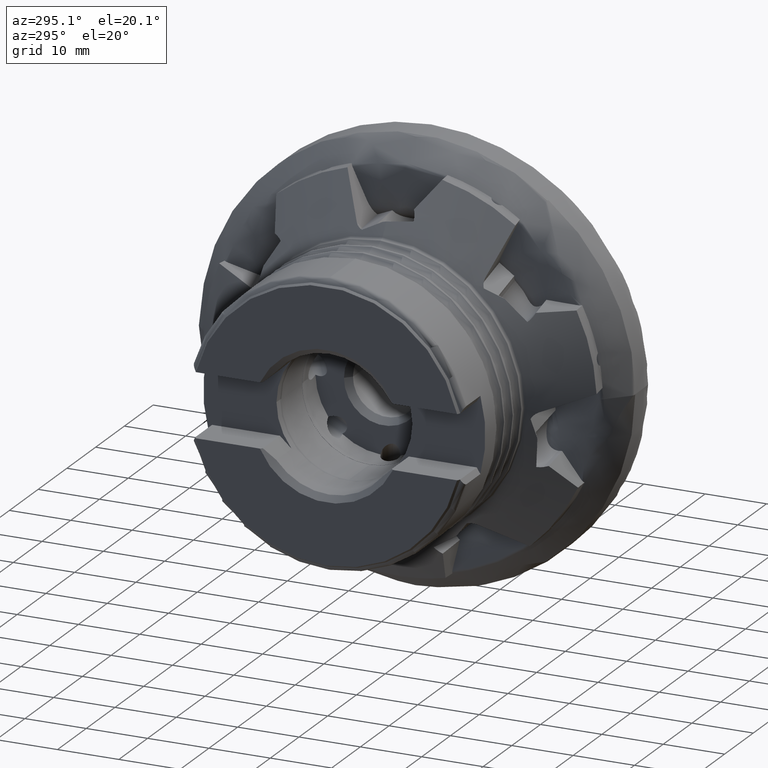
[diagram: clean part render]
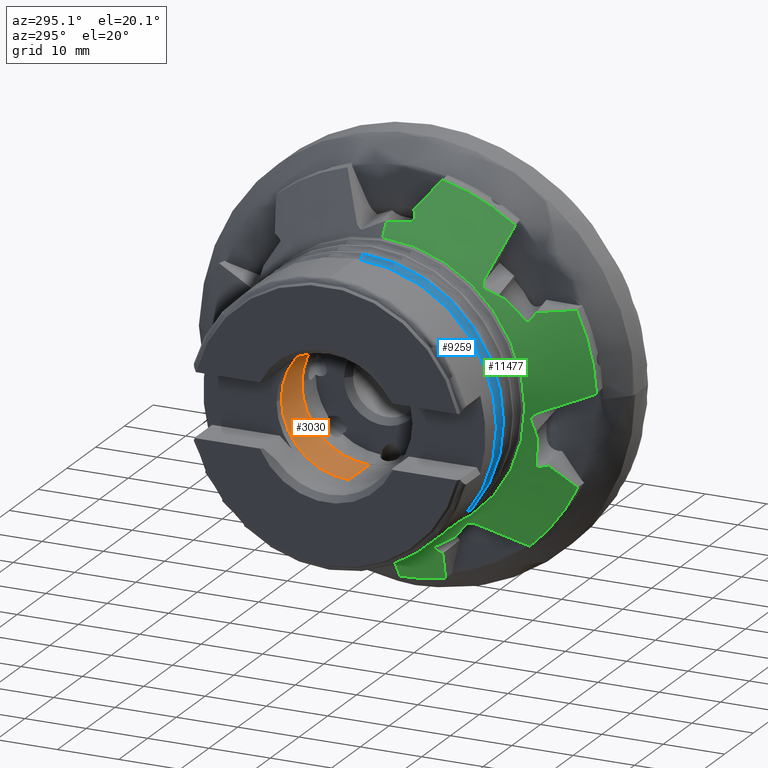
[diagram: same view with three faces highlighted in distinct colors, each labeled with its STEP entity id]
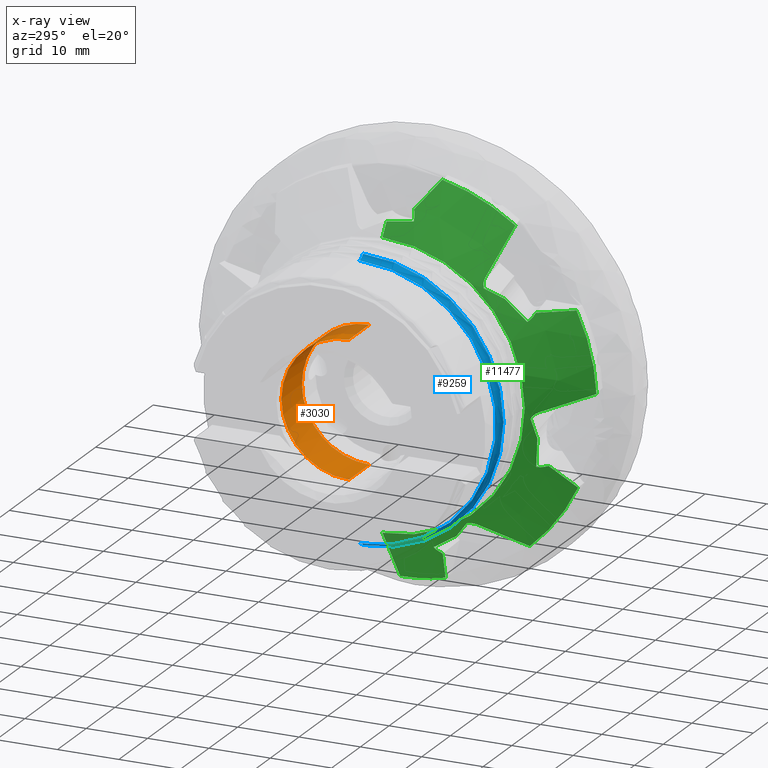
[diagram: x-ray of the same camera — body ghosted, the three highlighted faces saturated]
A machine part, auxiliary view with three faces highlighted in distinct colors.
The next image is the same camera in x-ray (body ghosted, the three faces saturated) — at least one of them is partly hidden behind the body in this view.
Their STEP definitions:

[orange] entity #3030 — the highlighted cylindrical surface (partial cylindrical patch) has radius 11 mm, axis along (-1, -0, -0).
#471 = EDGE_CURVE ( 'NONE', #7757, #2962, #6943, .T. ) ;
#1404 = VECTOR ( 'NONE', #5375, 1000.000000000000000 ) ;
#1492 = ORIENTED_EDGE ( 'NONE', *, *, #2391, .F. ) ;
#1709 = ORIENTED_EDGE ( 'NONE', *, *, #8023, .F. ) ;
#2391 = EDGE_CURVE ( 'Kante30', #5296, #5374, #6263, .T. ) ;
#2676 = DIRECTION ( 'NONE',  ( -1.000000000000000000, -0.0000000000000000000, -0.0000000000000000000 ) ) ;
#2962 = VERTEX_POINT ( 'NONE', #6156 ) ;
#3030 = ADVANCED_FACE ( 'NONE', ( #11248 ), #3273, .F. ) ;
#3084 = CARTESIAN_POINT ( 'NONE',  ( -24.15000000000000600, 0.0000000000000000000, 0.0000000000000000000 ) ) ;
#3093 = CARTESIAN_POINT ( 'NONE',  ( -31.29999999999999400, -5.174763463703276600E-015, 0.0000000000000000000 ) ) ;
#3217 = EDGE_CURVE ( 'NONE', #5296, #2962, #4684, .T. ) ;
#3273 = CYLINDRICAL_SURFACE ( 'NONE', #8049, 11.00000000000000000 ) ;
#3470 = DIRECTION ( 'NONE',  ( 1.000000000000000000, 1.653279061886031000E-016, -0.0000000000000000000 ) ) ;
#3501 = ORIENTED_EDGE ( 'NONE', *, *, #3217, .T. ) ;
#3674 = DIRECTION ( 'NONE',  ( 0.0000000000000000000, 0.0000000000000000000, 1.000000000000000000 ) ) ;
#4029 = CARTESIAN_POINT ( 'NONE',  ( -31.29999999999999400, 1.347111479062088600E-015, -11.00000000000000000 ) ) ;
#4038 = LINE ( 'NONE', #11356, #1404 ) ;
#4088 = DIRECTION ( 'NONE',  ( 0.0000000000000000000, 0.0000000000000000000, 1.000000000000000000 ) ) ;
#4089 = EDGE_CURVE ( 'NONE', #5374, #4449, #4038, .T. ) ;
#4098 = DIRECTION ( 'NONE',  ( 0.0000000000000000000, -1.000000000000000000, 0.0000000000000000000 ) ) ;
#4371 = VECTOR ( 'NONE', #6110, 1000.000000000000000 ) ;
#4449 = VERTEX_POINT ( 'NONE', #4029 ) ;
#4684 = LINE ( 'NONE', #12099, #4371 ) ;
#5296 = VERTEX_POINT ( 'NONE', #9079 ) ;
#5374 = VERTEX_POINT ( 'NONE', #6231 ) ;
#5375 = DIRECTION ( 'NONE',  ( -1.000000000000000000, -0.0000000000000000000, -0.0000000000000000000 ) ) ;
#6110 = DIRECTION ( 'NONE',  ( -1.000000000000000000, -0.0000000000000000000, -0.0000000000000000000 ) ) ;
#6156 = CARTESIAN_POINT ( 'NONE',  ( -31.29999999999999400, 0.0000000000000000000, 11.00000000000000000 ) ) ;
#6231 = CARTESIAN_POINT ( 'NONE',  ( -24.15000000000000600, 1.347111479062088400E-015, -11.00000000000000000 ) ) ;
#6263 = CIRCLE ( 'NONE', #8136, 11.00000000000000000 ) ;
#6943 = CIRCLE ( 'NONE', #7687, 11.00000000000000000 ) ;
#7687 = AXIS2_PLACEMENT_3D ( 'NONE', #9457, #3470, #10465 ) ;
#7757 = VERTEX_POINT ( 'NONE', #10553 ) ;
#7814 = AXIS2_PLACEMENT_3D ( 'NONE', #3093, #10084, #4098 ) ;
#8023 = EDGE_CURVE ( 'NONE', #4449, #7757, #10609, .T. ) ;
#8049 = AXIS2_PLACEMENT_3D ( 'NONE', #9661, #2676, #3674 ) ;
#8136 = AXIS2_PLACEMENT_3D ( 'NONE', #3084, #10071, #4088 ) ;
#9079 = CARTESIAN_POINT ( 'NONE',  ( -24.15000000000000600, 0.0000000000000000000, 11.00000000000000000 ) ) ;
#9457 = CARTESIAN_POINT ( 'NONE',  ( -31.29999999999999400, -5.174763463703276600E-015, 0.0000000000000000000 ) ) ;
#9528 = ORIENTED_EDGE ( 'NONE', *, *, #4089, .F. ) ;
#9661 = CARTESIAN_POINT ( 'NONE',  ( -24.15000000000000600, 0.0000000000000000000, 0.0000000000000000000 ) ) ;
#10071 = DIRECTION ( 'NONE',  ( -1.000000000000000000, 0.0000000000000000000, 0.0000000000000000000 ) ) ;
#10084 = DIRECTION ( 'NONE',  ( 1.000000000000000000, 1.653279061886031000E-016, -0.0000000000000000000 ) ) ;
#10465 = DIRECTION ( 'NONE',  ( 0.0000000000000000000, -1.000000000000000000, -8.881784197001252300E-016 ) ) ;
#10553 = CARTESIAN_POINT ( 'NONE',  ( -31.29999999999999400, 10.99999999999999500, 1.351703904558891200E-015 ) ) ;
#10609 = CIRCLE ( 'NONE', #7814, 11.00000000000000000 ) ;
#11248 = FACE_OUTER_BOUND ( 'NONE', #11392, .T. ) ;
#11356 = CARTESIAN_POINT ( 'NONE',  ( -24.15000000000000600, 1.347111479062088400E-015, -11.00000000000000000 ) ) ;
#11392 = EDGE_LOOP ( 'NONE', ( #9528, #1492, #3501, #12253, #1709 ) ) ;
#12099 = CARTESIAN_POINT ( 'NONE',  ( -24.15000000000000600, 0.0000000000000000000, 11.00000000000000000 ) ) ;
#12253 = ORIENTED_EDGE ( 'NONE', *, *, #471, .F. ) ;

[blue] entity #9259 — the highlighted toroidal blend (fillet) surface has major radius 23.75 mm and minor (blend) radius 1.5 mm.
#534 = DIRECTION ( 'NONE',  ( 0.0000000000000000000, 1.224646799147354900E-016, 1.000000000000000000 ) ) ;
#541 = CARTESIAN_POINT ( 'NONE',  ( -27.64999999999999900, 0.0000000000000000000, -23.74999999999998600 ) ) ;
#786 = AXIS2_PLACEMENT_3D ( 'NONE', #12506, #6509, #534 ) ;
#805 = CIRCLE ( 'NONE', #933, 22.24999999999998900 ) ;
#933 = AXIS2_PLACEMENT_3D ( 'NONE', #7496, #1509, #8483 ) ;
#1067 = VERTEX_POINT ( 'NONE', #5524 ) ;
#1138 = AXIS2_PLACEMENT_3D ( 'NONE', #4663, #2655, #11652 ) ;
#1509 = DIRECTION ( 'NONE',  ( 1.000000000000000000, -0.0000000000000000000, -0.0000000000000000000 ) ) ;
#1556 = DIRECTION ( 'NONE',  ( 0.0000000000000000000, 0.0000000000000000000, -1.000000000000000000 ) ) ;
#1667 = EDGE_CURVE ( 'NONE', #1067, #5222, #8314, .T. ) ;
#1937 = AXIS2_PLACEMENT_3D ( 'NONE', #541, #7538, #1556 ) ;
#2655 = DIRECTION ( 'NONE',  ( 1.000000000000000000, -0.0000000000000000000, -0.0000000000000000000 ) ) ;
#2727 = EDGE_CURVE ( 'NONE', #7429, #5222, #805, .T. ) ;
#2835 = CIRCLE ( 'NONE', #4268, 22.91176470588234800 ) ;
#2896 = EDGE_CURVE ( 'NONE', #6641, #1067, #2835, .T. ) ;
#3859 = CARTESIAN_POINT ( 'NONE',  ( -26.40607010177602000, 0.0000000000000000000, 0.0000000000000000000 ) ) ;
#4180 = EDGE_CURVE ( 'NONE', #6641, #7429, #9347, .T. ) ;
#4251 = CARTESIAN_POINT ( 'NONE',  ( -26.40607010177602000, 2.811284784513261500E-015, 22.91176470588234800 ) ) ;
#4268 = AXIS2_PLACEMENT_3D ( 'NONE', #3859, #10842, #4868 ) ;
#4364 = ORIENTED_EDGE ( 'NONE', *, *, #4180, .T. ) ;
#4434 = ORIENTED_EDGE ( 'NONE', *, *, #2727, .T. ) ;
#4648 = TOROIDAL_SURFACE ( 'NONE', #1138, 23.74999999999998600, 1.499999999999998700 ) ;
#4663 = CARTESIAN_POINT ( 'NONE',  ( -27.64999999999999900, 0.0000000000000000000, 0.0000000000000000000 ) ) ;
#4868 = DIRECTION ( 'NONE',  ( 0.0000000000000000000, 0.0000000000000000000, -1.000000000000000000 ) ) ;
#5030 = CARTESIAN_POINT ( 'NONE',  ( -27.64999999999999900, 0.0000000000000000000, -22.24999999999998900 ) ) ;
#5222 = VERTEX_POINT ( 'NONE', #5030 ) ;
#5392 = ORIENTED_EDGE ( 'NONE', *, *, #1667, .F. ) ;
#5524 = CARTESIAN_POINT ( 'NONE',  ( -26.40607010177602000, 0.0000000000000000000, -22.91176470588234800 ) ) ;
#6463 = ORIENTED_EDGE ( 'NONE', *, *, #2896, .F. ) ;
#6509 = DIRECTION ( 'NONE',  ( 0.0000000000000000000, 1.000000000000000000, -1.224646799147353200E-016 ) ) ;
#6641 = VERTEX_POINT ( 'NONE', #4251 ) ;
#7429 = VERTEX_POINT ( 'NONE', #10888 ) ;
#7496 = CARTESIAN_POINT ( 'NONE',  ( -27.64999999999999900, 0.0000000000000000000, 0.0000000000000000000 ) ) ;
#7538 = DIRECTION ( 'NONE',  ( -0.0000000000000000000, -1.000000000000000000, -0.0000000000000000000 ) ) ;
#8280 = EDGE_LOOP ( 'NONE', ( #4364, #4434, #5392, #6463 ) ) ;
#8314 = CIRCLE ( 'NONE', #1937, 1.499999999999997800 ) ;
#8483 = DIRECTION ( 'NONE',  ( 0.0000000000000000000, 0.0000000000000000000, -1.000000000000000000 ) ) ;
#9259 = ADVANCED_FACE ( 'NONE', ( #9966 ), #4648, .F. ) ;
#9347 = CIRCLE ( 'NONE', #786, 1.499999999999997800 ) ;
#9966 = FACE_OUTER_BOUND ( 'NONE', #8280, .T. ) ;
#10842 = DIRECTION ( 'NONE',  ( 1.000000000000000000, -0.0000000000000000000, -0.0000000000000000000 ) ) ;
#10888 = CARTESIAN_POINT ( 'NONE',  ( -27.64999999999999900, 2.724839128102859400E-015, 22.24999999999998900 ) ) ;
#11652 = DIRECTION ( 'NONE',  ( 0.0000000000000000000, 0.0000000000000000000, -1.000000000000000000 ) ) ;
#12506 = CARTESIAN_POINT ( 'NONE',  ( -27.64999999999999900, 2.908536147974962100E-015, 23.74999999999998600 ) ) ;

[green] entity #11477 — the highlighted conical surface has half-angle 55 deg.
#29 = CARTESIAN_POINT ( 'NONE',  ( -17.43809087074675900, -24.45093324673069900, -9.834086453557802100 ) ) ;
#35 = CARTESIAN_POINT ( 'NONE',  ( -18.60057088926593500, -12.12019326975290000, -21.53852603214288300 ) ) ;
#92 = CARTESIAN_POINT ( 'NONE',  ( -19.11095217035837400, -23.89941994483958600, -1.776064760076673900 ) ) ;
#114 = DIRECTION ( 'NONE',  ( 1.000000000000000000, -0.0000000000000000000, -0.0000000000000000000 ) ) ;
#116 = CARTESIAN_POINT ( 'NONE',  ( -17.64705153852185000, -24.15245123574246100, -9.776178858443241600 ) ) ;
#158 = VERTEX_POINT ( 'NONE', #12651 ) ;
#283 = CARTESIAN_POINT ( 'NONE',  ( -18.57379629821674500, -14.71023755070255500, -19.88238874349244200 ) ) ;
#313 = EDGE_CURVE ( 'NONE', #10269, #158, #6164, .T. ) ;
#342 = AXIS2_PLACEMENT_3D ( 'NONE', #5958, #12953, #6979 ) ;
#439 = ORIENTED_EDGE ( 'NONE', *, *, #8117, .T. ) ;
#469 = CARTESIAN_POINT ( 'NONE',  ( -17.55901511930906600, -7.469684781005148500, -25.09355592319722900 ) ) ;
#527 = ORIENTED_EDGE ( 'NONE', *, *, #11889, .F. ) ;
#546 = CARTESIAN_POINT ( 'NONE',  ( -15.59855133698881100, -26.81083813391459700, -11.03779438467234000 ) ) ;
#792 = CARTESIAN_POINT ( 'NONE',  ( -18.42690702134019200, -14.89696469211235900, -20.00489407739873500 ) ) ;
#848 = CARTESIAN_POINT ( 'NONE',  ( -19.11095217035837700, -16.28962795027663900, 17.57796066025147400 ) ) ;
#850 = CARTESIAN_POINT ( 'NONE',  ( -18.42690702134019200, -14.89696469211235900, -20.00489407739873500 ) ) ;
#861 = EDGE_CURVE ( 'NONE', #5789, #7262, #4351, .T. ) ;
#974 = CARTESIAN_POINT ( 'NONE',  ( -17.64705153852185000, -22.70213144514506700, 12.78779893549105200 ) ) ;
#996 = CARTESIAN_POINT ( 'NONE',  ( -13.44999999999999900, -32.01446459690097200, 1.508826223848850600 ) ) ;
#1020 = ORIENTED_EDGE ( 'NONE', *, *, #10687, .T. ) ;
#1028 = VERTEX_POINT ( 'NONE', #11507 ) ;
#1083 = ORIENTED_EDGE ( 'NONE', *, *, #313, .F. ) ;
#1135 = CARTESIAN_POINT ( 'NONE',  ( -17.23514645755528500, -24.75449069073332000, -9.855629565204262500 ) ) ;
#1154 = CARTESIAN_POINT ( 'NONE',  ( -17.55844613276056500, -4.157739467944542100, 25.85030943595478800 ) ) ;
#1186 = VERTEX_POINT ( 'NONE', #6743 ) ;
#1201 = CONICAL_SURFACE ( 'NONE', #2296, 32.04999999999999700, 0.9599310885968842500 ) ;
#1211 = LINE ( 'NONE', #2879, #6192 ) ;
#1249 = B_SPLINE_CURVE_WITH_KNOTS ( 'NONE', 3,
 ( #12892, #5886, #7921, #1939 ),
 .UNSPECIFIED., .F., .F.,
 ( 4, 4 ),
 ( 0.0006120213741874187100, 0.006659533458176909200 ),
 .UNSPECIFIED. ) ;
#1301 = AXIS2_PLACEMENT_3D ( 'NONE', #6091, #114, #7113 ) ;
#1360 = ORIENTED_EDGE ( 'NONE', *, *, #7947, .F. ) ;
#1473 = CARTESIAN_POINT ( 'NONE',  ( -13.45000000000000100, -28.75679240683298200, 14.15095016139595600 ) ) ;
#1487 = CARTESIAN_POINT ( 'NONE',  ( -17.29800340719880900, -7.672981463779817300, -25.42178538150161100 ) ) ;
#1488 = EDGE_CURVE ( 'NONE', #2940, #12747, #11738, .T. ) ;
#1506 = FACE_OUTER_BOUND ( 'NONE', #8432, .T. ) ;
#1542 = ORIENTED_EDGE ( 'NONE', *, *, #5389, .F. ) ;
#1547 = B_SPLINE_CURVE_WITH_KNOTS ( 'NONE', 3,
 ( #7295, #8292, #4307, #11283, #5304, #12297 ),
 .UNSPECIFIED., .F., .F.,
 ( 4, 2, 4 ),
 ( 0.0000000000000000000, 0.0007989045343449614200, 0.001597809068689922800 ),
 .UNSPECIFIED. ) ;
#1569 = ORIENTED_EDGE ( 'NONE', *, *, #8212, .F. ) ;
#1618 = CARTESIAN_POINT ( 'NONE',  ( -14.53025469454369500, -7.740647528220325300, -29.51763465468875900 ) ) ;
#1627 = CARTESIAN_POINT ( 'NONE',  ( -13.44999999999999900, 0.0000000000000000000, 0.0000000000000000000 ) ) ;
#1632 = VERTEX_POINT ( 'NONE', #1473 ) ;
#1761 = CARTESIAN_POINT ( 'NONE',  ( -18.28278489098340400, -24.64094012623792200, -5.024876947937282300 ) ) ;
#1815 = ORIENTED_EDGE ( 'NONE', *, *, #1488, .F. ) ;
#1818 = CARTESIAN_POINT ( 'NONE',  ( -15.59855133698887600, -4.795081092830455000, 28.59477476103716500 ) ) ;
#1872 = CARTESIAN_POINT ( 'NONE',  ( -18.28278489098341500, -19.29198187034617000, 16.13210321566867800 ) ) ;
#1939 = CARTESIAN_POINT ( 'NONE',  ( -13.45000000000000100, -28.75679240683298200, 14.15095016139595600 ) ) ;
#1969 = ORIENTED_EDGE ( 'NONE', *, *, #6076, .F. ) ;
#2037 = VECTOR ( 'NONE', #4952, 1000.000000000000200 ) ;
#2061 = CARTESIAN_POINT ( 'NONE',  ( -17.85128304905927300, -21.67831683061075400, 14.01107043516820400 ) ) ;
#2114 = CARTESIAN_POINT ( 'NONE',  ( -18.60028536810664700, -24.39653442677615300, -3.954065613178146900 ) ) ;
#2134 = B_SPLINE_CURVE_WITH_KNOTS ( 'NONE', 3,
 ( #12565, #5557, #1618, #8594 ),
 .UNSPECIFIED., .F., .F.,
 ( 4, 4 ),
 ( 0.0006120213741873433600, 0.006659533458176910900 ),
 .UNSPECIFIED. ) ;
#2141 = CARTESIAN_POINT ( 'NONE',  ( -17.03873128699543600, -25.06182455562639800, -9.841121961731012400 ) ) ;
#2184 = ORIENTED_EDGE ( 'NONE', *, *, #2354, .F. ) ;
#2202 = CARTESIAN_POINT ( 'NONE',  ( -17.29621574956108200, -4.116506850299580300, 26.23607800693196200 ) ) ;
#2283 = CARTESIAN_POINT ( 'NONE',  ( -18.94182346945020300, -14.01529264148360600, -19.73761511445873800 ) ) ;
#2296 = AXIS2_PLACEMENT_3D ( 'NONE', #1627, #2481, #8474 ) ;
#2330 = B_SPLINE_CURVE_WITH_KNOTS ( 'NONE', 3,
 ( #92, #6063, #2114, #9085 ),
 .UNSPECIFIED., .F., .F.,
 ( 4, 4 ),
 ( 0.01557678928807016200, 0.01900135324810320700 ),
 .UNSPECIFIED. ) ;
#2354 = EDGE_CURVE ( 'NONE', #8249, #7954, #8926, .T. ) ;
#2465 = CARTESIAN_POINT ( 'NONE',  ( -16.95776900465215700, -8.010972796000443100, -25.82669499410682000 ) ) ;
#2481 = DIRECTION ( 'NONE',  ( 1.000000000000000000, -0.0000000000000000000, -0.0000000000000000000 ) ) ;
#2539 = CARTESIAN_POINT ( 'NONE',  ( -14.53025469454363800, -27.90403085465348100, -12.35206224993938100 ) ) ;
#2568 = CARTESIAN_POINT ( 'NONE',  ( -17.64705153852185000, -7.415482625606437700, -24.97849457426366700 ) ) ;
#2589 = VERTEX_POINT ( 'NONE', #6350 ) ;
#2667 = DIRECTION ( 'NONE',  ( 1.000000000000000000, -0.0000000000000000000, -0.0000000000000000000 ) ) ;
#2748 = B_SPLINE_CURVE_WITH_KNOTS ( 'NONE', 3,
 ( #8952, #7950, #9943, #3960 ),
 .UNSPECIFIED., .F., .F.,
 ( 4, 4 ),
 ( 3.576832978361728800E-007, 0.008968670596897876400 ),
 .UNSPECIFIED. ) ;
#2808 = CARTESIAN_POINT ( 'NONE',  ( -17.46948252254242100, -22.89955436113109500, 12.95399371817918200 ) ) ;
#2831 =( BOUNDED_CURVE ( )  B_SPLINE_CURVE ( 3, ( #10611, #11622, #12634, #6655 ),
 .UNSPECIFIED., .F., .F. ) 
 B_SPLINE_CURVE_WITH_KNOTS ( ( 4, 4 ),
 ( 1.137889489275856900, 1.312520842058338100 ),
 .UNSPECIFIED. ) 
 CURVE ( )  GEOMETRIC_REPRESENTATION_ITEM ( )  RATIONAL_B_SPLINE_CURVE ( ( 1.000000000000000000, 0.9974602717472020900, 0.9974602717472020900, 1.000000000000000000 ) ) 
 REPRESENTATION_ITEM ( '' )  );
#2879 = CARTESIAN_POINT ( 'NONE',  ( -13.44999999999999900, 0.0000000000000000000, -32.04999999999999700 ) ) ;
#2880 = VERTEX_POINT ( 'NONE', #850 ) ;
#2940 = VERTEX_POINT ( 'NONE', #7273 ) ;
#2949 = CARTESIAN_POINT ( 'NONE',  ( -19.63758572392920600, 0.0000000000000000000, 0.0000000000000000000 ) ) ;
#2976 = ORIENTED_EDGE ( 'NONE', *, *, #8946, .F. ) ;
#3023 = EDGE_CURVE ( 'NONE', #5789, #5686, #2831, .T. ) ;
#3028 = ORIENTED_EDGE ( 'NONE', *, *, #10807, .T. ) ;
#3078 =( BOUNDED_CURVE ( )  B_SPLINE_CURVE ( 3, ( #11942, #5959, #12957, #6982 ),
 .UNSPECIFIED., .F., .T. ) 
 B_SPLINE_CURVE_WITH_KNOTS ( ( 4, 4 ),
 ( 1.137889489275856900, 1.337395664971000200 ),
 .UNSPECIFIED. ) 
 CURVE ( )  GEOMETRIC_REPRESENTATION_ITEM ( )  RATIONAL_B_SPLINE_CURVE ( ( 1.000000000000000000, 0.9966858566873636500, 0.9966858566873636500, 1.000000000000000000 ) ) 
 REPRESENTATION_ITEM ( '' )  );
#3085 = ORIENTED_EDGE ( 'NONE', *, *, #3934, .F. ) ;
#3133 = CARTESIAN_POINT ( 'NONE',  ( -19.11095217035837400, -23.89941994483958600, -1.776064760076673900 ) ) ;
#3160 = CARTESIAN_POINT ( 'NONE',  ( -13.44999999999999900, 0.0000000000000000000, 0.0000000000000000000 ) ) ;
#3186 = CARTESIAN_POINT ( 'NONE',  ( -16.96056239597540800, -3.989413209648814600, 26.74065120963088700 ) ) ;
#3270 = ORIENTED_EDGE ( 'NONE', *, *, #5551, .T. ) ;
#3293 = CARTESIAN_POINT ( 'NONE',  ( -19.11095217035837700, -13.51246126161667500, -19.79267719094845300 ) ) ;
#3439 = EDGE_CURVE ( 'NONE', #1186, #6692, #4406, .T. ) ;
#3467 = CARTESIAN_POINT ( 'NONE',  ( -16.64684298790193400, -8.436649152089405100, -26.15754425772354700 ) ) ;
#3543 = ORIENTED_EDGE ( 'NONE', *, *, #5414, .F. ) ;
#3599 = CARTESIAN_POINT ( 'NONE',  ( -18.28278489098340400, -24.64094012623792200, -5.024876947937282300 ) ) ;
#3630 = AXIS2_PLACEMENT_3D ( 'NONE', #8649, #2667, #9650 ) ;
#3673 = VERTEX_POINT ( 'NONE', #8589 ) ;
#3693 = AXIS2_PLACEMENT_3D ( 'NONE', #3160, #10153, #4166 ) ;
#3796 = CARTESIAN_POINT ( 'NONE',  ( -17.21096300573047700, -23.16243427333289900, 13.23866109176795900 ) ) ;
#3811 = EDGE_CURVE ( 'NONE', #12588, #3673, #11235, .T. ) ;
#3824 = EDGE_CURVE ( 'NONE', #2589, #4766, #12956, .T. ) ;
#3851 = B_SPLINE_CURVE_WITH_KNOTS ( 'NONE', 3,
 ( #11749, #12763, #2808, #9792, #3796, #10795, #4803, #11788 ),
 .UNSPECIFIED., .F., .F.,
 ( 4, 2, 2, 4 ),
 ( 0.001355116005000654100, 0.001817197486309399400, 0.002279278967618144500, 0.003203441930235627700 ),
 .UNSPECIFIED. ) ;
#3886 = DIRECTION ( 'NONE',  ( 0.5735764363510436100, 0.0000000000000000000, -0.8191520442889934600 ) ) ;
#3888 = VERTEX_POINT ( 'NONE', #12040 ) ;
#3902 = ORIENTED_EDGE ( 'NONE', *, *, #7271, .F. ) ;
#3934 = EDGE_CURVE ( 'NONE', #6692, #1028, #7344, .T. ) ;
#3951 = DIRECTION ( 'NONE',  ( 0.0000000000000000000, 0.0000000000000000000, -1.000000000000000000 ) ) ;
#3960 = CARTESIAN_POINT ( 'NONE',  ( -18.42690702134018100, -16.18844311989370900, 18.97497439892742200 ) ) ;
#4002 = CARTESIAN_POINT ( 'NONE',  ( -19.11095217035837700, -13.51246126161667500, -19.79267719094845300 ) ) ;
#4003 = CARTESIAN_POINT ( 'NONE',  ( -17.64705153852185000, -22.70213144514506700, 12.78779893549105200 ) ) ;
#4166 = DIRECTION ( 'NONE',  ( 0.0000000000000000000, 0.0000000000000000000, -1.000000000000000000 ) ) ;
#4189 = ORIENTED_EDGE ( 'NONE', *, *, #9601, .F. ) ;
#4197 = CARTESIAN_POINT ( 'NONE',  ( -16.64684298790163900, -3.748174873226003600, 27.22765791672014800 ) ) ;
#4307 = CARTESIAN_POINT ( 'NONE',  ( -18.71056379662784500, -16.08379331159488500, 18.53138688541037400 ) ) ;
#4351 = B_SPLINE_CURVE_WITH_KNOTS ( 'NONE', 3,
 ( #8184, #1154, #6150, #2202, #9165, #3186, #10177, #4197 ),
 .UNSPECIFIED., .F., .F.,
 ( 4, 2, 2, 4 ),
 ( 0.001355116005000642700, 0.001816995624793315700, 0.002278875244585988700, 0.003202634484171337300 ),
 .UNSPECIFIED. ) ;
#4361 = ORIENTED_EDGE ( 'NONE', *, *, #7924, .F. ) ;
#4368 = B_SPLINE_CURVE_WITH_KNOTS ( 'NONE', 3,
 ( #10463, #10502, #6775, #792 ),
 .UNSPECIFIED., .F., .F.,
 ( 4, 4 ),
 ( 3.576834477271380500E-007, 0.008968671198431464900 ),
 .UNSPECIFIED. ) ;
#4406 = B_SPLINE_CURVE_WITH_KNOTS ( 'NONE', 3,
 ( #7540, #546, #2539, #9534 ),
 .UNSPECIFIED., .F., .F.,
 ( 4, 4 ),
 ( 0.0006120213741876607000, 0.006659533458176910100 ),
 .UNSPECIFIED. ) ;
#4473 = CARTESIAN_POINT ( 'NONE',  ( -18.94182346945020600, -24.16988091735144600, -1.348604713763364100 ) ) ;
#4709 = CARTESIAN_POINT ( 'NONE',  ( -18.06389880563427400, -24.63387649992851900, -6.623997467093312600 ) ) ;
#4766 = VERTEX_POINT ( 'NONE', #7760 ) ;
#4803 = CARTESIAN_POINT ( 'NONE',  ( -16.79769678638086500, -23.52522432332747800, 13.79094483374898800 ) ) ;
#4952 = DIRECTION ( 'NONE',  ( 0.5735764363510436100, 1.003171929053526700E-016, 0.8191520442889934600 ) ) ;
#4980 = ORIENTED_EDGE ( 'NONE', *, *, #3824, .F. ) ;
#5016 = CARTESIAN_POINT ( 'NONE',  ( -18.87963116016583600, -12.81224372716402200, -20.67072220688802600 ) ) ;
#5053 = CARTESIAN_POINT ( 'NONE',  ( -18.28278489098341500, -19.29198187034617000, 16.13210321566867800 ) ) ;
#5152 = CARTESIAN_POINT ( 'NONE',  ( -17.85128304905927300, -24.47050543463986800, -8.213031055636319500 ) ) ;
#5157 = VERTEX_POINT ( 'NONE', #10507 ) ;
#5181 = CARTESIAN_POINT ( 'NONE',  ( -18.42690702134018100, -16.18844311989370900, 18.97497439892742200 ) ) ;
#5304 = CARTESIAN_POINT ( 'NONE',  ( -19.03724693391028600, -16.18959635046013900, 17.81417207705510500 ) ) ;
#5308 = B_SPLINE_CURVE_WITH_KNOTS ( 'NONE', 3,
 ( #7243, #283, #8287, #2283, #9266, #3293 ),
 .UNSPECIFIED., .F., .F.,
 ( 4, 2, 4 ),
 ( 4.906538933386797400E-018, 0.0007989045343449626100, 0.001597809068689920500 ),
 .UNSPECIFIED. ) ;
#5333 = CARTESIAN_POINT ( 'NONE',  ( -13.45000000000000100, -28.99322514284441600, -13.65999252621808300 ) ) ;
#5389 = EDGE_CURVE ( 'NONE', #10520, #6215, #7265, .T. ) ;
#5414 = EDGE_CURVE ( 'NONE', #1028, #2880, #4368, .T. ) ;
#5474 = CARTESIAN_POINT ( 'NONE',  ( -19.11095217035837400, -23.89941994483958600, -1.776064760076673900 ) ) ;
#5551 = EDGE_CURVE ( 'NONE', #10520, #5157, #3078, .T. ) ;
#5557 = CARTESIAN_POINT ( 'NONE',  ( -15.59855133698892300, -8.086589008835273900, -27.84350955830548500 ) ) ;
#5603 = EDGE_CURVE ( 'NONE', #1632, #8249, #6039, .T. ) ;
#5686 = VERTEX_POINT ( 'NONE', #9145 ) ;
#5687 = VERTEX_POINT ( 'NONE', #5181 ) ;
#5746 = EDGE_CURVE ( 'NONE', #2880, #3888, #5308, .T. ) ;
#5789 = VERTEX_POINT ( 'NONE', #6304 ) ;
#5814 = CARTESIAN_POINT ( 'NONE',  ( -14.53025469454367000, -5.833139253549879800, 29.95301097072752900 ) ) ;
#5868 = ORIENTED_EDGE ( 'NONE', *, *, #11501, .F. ) ;
#5886 = CARTESIAN_POINT ( 'NONE',  ( -15.59855133698889600, -25.34597930272650500, 14.07960509059207300 ) ) ;
#5956 = CARTESIAN_POINT ( 'NONE',  ( -13.44999999999999900, 3.924992991267266500E-015, 32.04999999999999700 ) ) ;
#5958 = CARTESIAN_POINT ( 'NONE',  ( -13.44999999999999900, 0.0000000000000000000, 0.0000000000000000000 ) ) ;
#5959 = CARTESIAN_POINT ( 'NONE',  ( -17.85128304905927300, -8.835904339042508900, -24.25255264624480500 ) ) ;
#5964 = CARTESIAN_POINT ( 'NONE',  ( -16.64684298790175600, -23.62438896220130500, 14.04572592188946500 ) ) ;
#6003 = CARTESIAN_POINT ( 'NONE',  ( -18.42690702134019200, -24.92856155733025100, -0.8259314550141194600 ) ) ;
#6026 = EDGE_CURVE ( 'NONE', #4766, #5687, #2748, .T. ) ;
#6039 = CIRCLE ( 'NONE', #1301, 32.04999999999999700 ) ;
#6063 = CARTESIAN_POINT ( 'NONE',  ( -18.87940794586639700, -24.14956583627303700, -2.872025519094368700 ) ) ;
#6068 = VERTEX_POINT ( 'NONE', #5964 ) ;
#6076 = EDGE_CURVE ( 'NONE', #3888, #5157, #11708, .T. ) ;
#6091 = CARTESIAN_POINT ( 'NONE',  ( -13.44999999999999900, 0.0000000000000000000, 0.0000000000000000000 ) ) ;
#6143 = VERTEX_POINT ( 'NONE', #3133 ) ;
#6150 = CARTESIAN_POINT ( 'NONE',  ( -17.46955968819247600, -4.149805452361523100, 25.98016276670616900 ) ) ;
#6164 = B_SPLINE_CURVE_WITH_KNOTS ( 'NONE', 3,
 ( #848, #6843, #7852, #1872 ),
 .UNSPECIFIED., .F., .F.,
 ( 4, 4 ),
 ( 0.01628239562661947000, 0.01970614495812350600 ),
 .UNSPECIFIED. ) ;
#6192 = VECTOR ( 'NONE', #3886, 1000.000000000000200 ) ;
#6215 = VERTEX_POINT ( 'NONE', #8208 ) ;
#6304 = CARTESIAN_POINT ( 'NONE',  ( -17.64705153852185000, -4.156643637266310700, 25.72230330744047700 ) ) ;
#6350 = CARTESIAN_POINT ( 'NONE',  ( -13.44999999999999900, -6.865908456813568400, 31.30593875070120900 ) ) ;
#6443 = CARTESIAN_POINT ( 'NONE',  ( -17.47161029730615000, -7.531986188389757900, -25.20525404288860100 ) ) ;
#6487 = CIRCLE ( 'NONE', #3630, 32.04999999999999700 ) ;
#6607 = CARTESIAN_POINT ( 'NONE',  ( -16.64684298790119900, -25.71095631292698500, -9.712924172718231800 ) ) ;
#6646 = CARTESIAN_POINT ( 'NONE',  ( -13.45000000000000300, -7.397167992282335900, -31.18468222852292000 ) ) ;
#6655 = CARTESIAN_POINT ( 'NONE',  ( -18.20129739390640100, 3.469446951953614200E-015, 25.26444409745352000 ) ) ;
#6692 = VERTEX_POINT ( 'NONE', #5333 ) ;
#6743 = CARTESIAN_POINT ( 'NONE',  ( -16.64684298790119900, -25.71095631292698500, -9.712924172718231800 ) ) ;
#6775 = CARTESIAN_POINT ( 'NONE',  ( -16.78411618248236100, -16.98529710001131600, -21.37497802451764500 ) ) ;
#6843 = CARTESIAN_POINT ( 'NONE',  ( -18.87949281484482000, -17.30207675388650300, 17.09039101359090700 ) ) ;
#6979 = DIRECTION ( 'NONE',  ( 0.0000000000000000000, 0.0000000000000000000, -1.000000000000000000 ) ) ;
#6982 = CARTESIAN_POINT ( 'NONE',  ( -18.28278489098341100, -11.43476788349572700, -22.39802228093649500 ) ) ;
#7035 = CARTESIAN_POINT ( 'NONE',  ( -18.28278489098341100, -11.43476788349572700, -22.39802228093649500 ) ) ;
#7113 = DIRECTION ( 'NONE',  ( 0.0000000000000000000, 0.0000000000000000000, -1.000000000000000000 ) ) ;
#7243 = CARTESIAN_POINT ( 'NONE',  ( -18.42690702134019200, -14.89696469211235900, -20.00489407739873500 ) ) ;
#7262 = VERTEX_POINT ( 'NONE', #10565 ) ;
#7265 = B_SPLINE_CURVE_WITH_KNOTS ( 'NONE', 3,
 ( #7466, #469, #6443, #1487, #8464, #2465, #9454, #3467 ),
 .UNSPECIFIED., .F., .F.,
 ( 4, 2, 2, 4 ),
 ( 0.0007506923261620523000, 0.001214745216342493100, 0.001678798106522934100, 0.002606903886883828400 ),
 .UNSPECIFIED. ) ;
#7271 = EDGE_CURVE ( 'NONE', #12747, #1186, #9790, .T. ) ;
#7273 = CARTESIAN_POINT ( 'NONE',  ( -17.64705153852185000, -24.15245123574246100, -9.776178858443241600 ) ) ;
#7295 = CARTESIAN_POINT ( 'NONE',  ( -18.42690702134018100, -16.18844311989370900, 18.97497439892742200 ) ) ;
#7344 = CIRCLE ( 'NONE', #3693, 32.04999999999999700 ) ;
#7346 = CARTESIAN_POINT ( 'NONE',  ( -17.03873128699543600, -25.06182455562639800, -9.841121961731012400 ) ) ;
#7466 = CARTESIAN_POINT ( 'NONE',  ( -17.64705153852185000, -7.415482625606437700, -24.97849457426366700 ) ) ;
#7540 = CARTESIAN_POINT ( 'NONE',  ( -16.64684298790119900, -25.71095631292698500, -9.712924172718231800 ) ) ;
#7607 = CARTESIAN_POINT ( 'NONE',  ( -13.44999999999999900, 0.0000000000000000000, -32.04999999999999700 ) ) ;
#7668 = LINE ( 'NONE', #5956, #2037 ) ;
#7673 = ORIENTED_EDGE ( 'NONE', *, *, #3023, .T. ) ;
#7709 =( BOUNDED_CURVE ( )  B_SPLINE_CURVE ( 3, ( #4003, #2061, #11040, #5053 ),
 .UNSPECIFIED., .F., .F. ) 
 B_SPLINE_CURVE_WITH_KNOTS ( ( 4, 4 ),
 ( 1.137889489275856900, 1.337395664971000200 ),
 .UNSPECIFIED. ) 
 CURVE ( )  GEOMETRIC_REPRESENTATION_ITEM ( )  RATIONAL_B_SPLINE_CURVE ( ( 1.000000000000000000, 0.9966858566873636500, 0.9966858566873636500, 1.000000000000000000 ) ) 
 REPRESENTATION_ITEM ( '' )  );
#7760 = CARTESIAN_POINT ( 'NONE',  ( -13.45000000000000100, -18.78104434475679700, 25.97065407956215900 ) ) ;
#7852 = CARTESIAN_POINT ( 'NONE',  ( -18.60039380161783400, -18.30206543274464400, 16.60882184675794400 ) ) ;
#7921 = CARTESIAN_POINT ( 'NONE',  ( -14.53025469454368100, -27.05510980903528700, 14.11486496516596900 ) ) ;
#7924 = EDGE_CURVE ( 'NONE', #7262, #2589, #12518, .T. ) ;
#7946 = CARTESIAN_POINT ( 'NONE',  ( -15.12154981037088500, -29.66126413195079800, 0.7307611368152420200 ) ) ;
#7947 = EDGE_CURVE ( 'NONE', #6068, #1632, #1249, .T. ) ;
#7950 = CARTESIAN_POINT ( 'NONE',  ( -15.12155523223614000, -17.92216084770425500, 23.64572468340482200 ) ) ;
#7954 = VERTEX_POINT ( 'NONE', #9908 ) ;
#8117 = EDGE_CURVE ( 'NONE', #2940, #11177, #8484, .T. ) ;
#8125 = CARTESIAN_POINT ( 'NONE',  ( -17.13587723813113700, -24.90754605364831800, -9.854432626252027200 ) ) ;
#8184 = CARTESIAN_POINT ( 'NONE',  ( -17.64705153852185000, -4.156643637266310700, 25.72230330744047700 ) ) ;
#8194 = B_SPLINE_CURVE_WITH_KNOTS ( 'NONE', 3,
 ( #9444, #9365, #10448, #4473, #11441, #5474 ),
 .UNSPECIFIED., .F., .F.,
 ( 4, 2, 4 ),
 ( 0.0000000000000000000, 0.0007989045343449589300, 0.001597809068689917900 ),
 .UNSPECIFIED. ) ;
#8208 = CARTESIAN_POINT ( 'NONE',  ( -16.64684298790193400, -8.436649152089405100, -26.15754425772354700 ) ) ;
#8212 = EDGE_CURVE ( 'NONE', #12588, #5686, #7668, .T. ) ;
#8249 = VERTEX_POINT ( 'NONE', #9024 ) ;
#8287 = CARTESIAN_POINT ( 'NONE',  ( -18.71056379662784200, -14.48778561677025500, -19.80416055048455000 ) ) ;
#8292 = CARTESIAN_POINT ( 'NONE',  ( -18.57379629821673800, -16.11055994837881800, 18.76566889548960800 ) ) ;
#8432 = EDGE_LOOP ( 'NONE', ( #1569, #12260, #1020, #5868, #527, #1542, #3270, #1969, #10131, #3543, #3085, #8858, #3902, #1815, #439, #2976, #4189, #2184, #11035, #1360, #12740, #3028, #1083, #8982, #11394, #4980, #4361, #12898, #7673 ) ) ;
#8464 = CARTESIAN_POINT ( 'NONE',  ( -17.21122111753840000, -7.752302862654672400, -25.52729337882607300 ) ) ;
#8474 = DIRECTION ( 'NONE',  ( 0.0000000000000000000, 0.0000000000000000000, -1.000000000000000000 ) ) ;
#8484 =( BOUNDED_CURVE ( )  B_SPLINE_CURVE ( 3, ( #12184, #5152, #4709, #1761 ),
 .UNSPECIFIED., .F., .F. ) 
 B_SPLINE_CURVE_WITH_KNOTS ( ( 4, 4 ),
 ( 1.137889489275856900, 1.337395664970998400 ),
 .UNSPECIFIED. ) 
 CURVE ( )  GEOMETRIC_REPRESENTATION_ITEM ( )  RATIONAL_B_SPLINE_CURVE ( ( 1.000000000000000000, 0.9966858566873636500, 0.9966858566873636500, 1.000000000000000000 ) ) 
 REPRESENTATION_ITEM ( '' )  );
#8589 = CARTESIAN_POINT ( 'NONE',  ( -19.63758572392920600, 0.0000000000000000000, -23.21321178182447700 ) ) ;
#8594 = CARTESIAN_POINT ( 'NONE',  ( -13.45000000000000300, -7.397167992282335900, -31.18468222852292000 ) ) ;
#8649 = CARTESIAN_POINT ( 'NONE',  ( -13.44999999999999900, 0.0000000000000000000, 0.0000000000000000000 ) ) ;
#8858 = ORIENTED_EDGE ( 'NONE', *, *, #3439, .F. ) ;
#8926 = B_SPLINE_CURVE_WITH_KNOTS ( 'NONE', 3,
 ( #996, #7946, #11996, #6003 ),
 .UNSPECIFIED., .F., .F.,
 ( 4, 4 ),
 ( 3.576846153164336900E-007, 0.008968674541191740100 ),
 .UNSPECIFIED. ) ;
#8946 = EDGE_CURVE ( 'NONE', #6143, #11177, #2330, .T. ) ;
#8952 = CARTESIAN_POINT ( 'NONE',  ( -13.45000000000000100, -18.78104434475679700, 25.97065407956215900 ) ) ;
#8982 = ORIENTED_EDGE ( 'NONE', *, *, #12306, .F. ) ;
#9024 = CARTESIAN_POINT ( 'NONE',  ( -13.44999999999999900, -32.01446459690097200, 1.508826223848850600 ) ) ;
#9085 = CARTESIAN_POINT ( 'NONE',  ( -18.28278489098340400, -24.64094012623792200, -5.024876947937282300 ) ) ;
#9145 = CARTESIAN_POINT ( 'NONE',  ( -18.20129739390640100, 3.469446951953614200E-015, 25.26444409745352000 ) ) ;
#9165 = CARTESIAN_POINT ( 'NONE',  ( -17.21114823101716200, -4.091198548949027900, 26.36301357849319500 ) ) ;
#9266 = CARTESIAN_POINT ( 'NONE',  ( -19.03724693391027500, -13.76500949005087000, -19.74771557726543800 ) ) ;
#9365 = CARTESIAN_POINT ( 'NONE',  ( -18.57379629821674500, -24.71636056211279700, -0.8955397864357006500 ) ) ;
#9444 = CARTESIAN_POINT ( 'NONE',  ( -18.42690702134019200, -24.92856155733025100, -0.8259314550141194600 ) ) ;
#9454 = CARTESIAN_POINT ( 'NONE',  ( -16.79789638643804400, -8.210022704491542800, -26.00396882505513600 ) ) ;
#9534 = CARTESIAN_POINT ( 'NONE',  ( -13.45000000000000100, -28.99322514284441600, -13.65999252621808300 ) ) ;
#9601 = EDGE_CURVE ( 'NONE', #7954, #6143, #8194, .T. ) ;
#9650 = DIRECTION ( 'NONE',  ( 0.0000000000000000000, 0.0000000000000000000, -1.000000000000000000 ) ) ;
#9790 = B_SPLINE_CURVE_WITH_KNOTS ( 'NONE', 3,
 ( #11580, #12549, #12594, #6607 ),
 .UNSPECIFIED., .F., .F.,
 ( 4, 4 ),
 ( 0.002443800426840281300, 0.003202545619061705800 ),
 .UNSPECIFIED. ) ;
#9792 = CARTESIAN_POINT ( 'NONE',  ( -17.29606564049680600, -23.07894309798383900, 13.13968003907335800 ) ) ;
#9797 = CARTESIAN_POINT ( 'NONE',  ( -16.64684298790163900, -3.748174873226003600, 27.22765791672014800 ) ) ;
#9908 = CARTESIAN_POINT ( 'NONE',  ( -18.42690702134019200, -24.92856155733025100, -0.8259314550141194600 ) ) ;
#9929 = DIRECTION ( 'NONE',  ( 1.000000000000000000, -0.0000000000000000000, -0.0000000000000000000 ) ) ;
#9943 = CARTESIAN_POINT ( 'NONE',  ( -16.78411692587059900, -17.05947812999828300, 21.31581925354450700 ) ) ;
#10131 = ORIENTED_EDGE ( 'NONE', *, *, #5746, .F. ) ;
#10153 = DIRECTION ( 'NONE',  ( 1.000000000000000000, -0.0000000000000000000, -0.0000000000000000000 ) ) ;
#10177 = CARTESIAN_POINT ( 'NONE',  ( -16.79830670675723100, -3.886098002598202200, 26.99031874272312900 ) ) ;
#10269 = VERTEX_POINT ( 'NONE', #12022 ) ;
#10448 = CARTESIAN_POINT ( 'NONE',  ( -18.71056379662784200, -24.51650278579211000, -1.020685231161611700 ) ) ;
#10463 = CARTESIAN_POINT ( 'NONE',  ( -13.44999999999999900, -21.14034003151355600, -24.08917855286862100 ) ) ;
#10502 = CARTESIAN_POINT ( 'NONE',  ( -15.12155464379885400, -19.06482175791611800, -22.73448407455735400 ) ) ;
#10507 = CARTESIAN_POINT ( 'NONE',  ( -18.28278489098341100, -11.43476788349572700, -22.39802228093649500 ) ) ;
#10520 = VERTEX_POINT ( 'NONE', #2568 ) ;
#10565 = CARTESIAN_POINT ( 'NONE',  ( -16.64684298790163900, -3.748174873226003600, 27.22765791672014800 ) ) ;
#10611 = CARTESIAN_POINT ( 'NONE',  ( -17.64705153852185000, -4.156643637266310700, 25.72230330744047700 ) ) ;
#10612 = EDGE_CURVE ( 'NONE', #12561, #6068, #3851, .T. ) ;
#10687 = EDGE_CURVE ( 'NONE', #3673, #11461, #1211, .T. ) ;
#10795 = CARTESIAN_POINT ( 'NONE',  ( -16.96027575560519600, -23.39428976736498800, 13.55386300731884600 ) ) ;
#10807 = EDGE_CURVE ( 'NONE', #12561, #158, #7709, .T. ) ;
#11035 = ORIENTED_EDGE ( 'NONE', *, *, #5603, .F. ) ;
#11040 = CARTESIAN_POINT ( 'NONE',  ( -18.06389880563427800, -20.53782053751493900, 15.12954531460276900 ) ) ;
#11177 = VERTEX_POINT ( 'NONE', #3599 ) ;
#11235 = CIRCLE ( 'NONE', #12657, 23.21321178182447700 ) ;
#11283 = CARTESIAN_POINT ( 'NONE',  ( -18.94182346945020600, -16.12405588673359000, 18.05593254291858300 ) ) ;
#11394 = ORIENTED_EDGE ( 'NONE', *, *, #6026, .F. ) ;
#11441 = CARTESIAN_POINT ( 'NONE',  ( -19.03724693391025700, -24.02172878466584300, -1.550581496638813800 ) ) ;
#11461 = VERTEX_POINT ( 'NONE', #7607 ) ;
#11477 = ADVANCED_FACE ( 'NONE', ( #1506 ), #1201, .T. ) ;
#11501 = EDGE_CURVE ( 'NONE', #12437, #11461, #6487, .T. ) ;
#11507 = CARTESIAN_POINT ( 'NONE',  ( -13.44999999999999900, -21.14034003151355600, -24.08917855286862100 ) ) ;
#11580 = CARTESIAN_POINT ( 'NONE',  ( -17.03873128699543600, -25.06182455562639800, -9.841121961731012400 ) ) ;
#11622 = CARTESIAN_POINT ( 'NONE',  ( -17.82574959118569800, -2.761290050502964300, 25.68927009902207100 ) ) ;
#11708 = B_SPLINE_CURVE_WITH_KNOTS ( 'NONE', 3,
 ( #4002, #5016, #35, #7035 ),
 .UNSPECIFIED., .F., .F.,
 ( 4, 4 ),
 ( 0.01770538359289141100, 0.02112530569458935200 ),
 .UNSPECIFIED. ) ;
#11738 = B_SPLINE_CURVE_WITH_KNOTS ( 'NONE', 3,
 ( #116, #12081, #29, #1135, #8125, #2141 ),
 .UNSPECIFIED., .F., .F.,
 ( 4, 2, 4 ),
 ( 0.001355116005000647200, 0.001899458215920464400, 0.002443800426840281300 ),
 .UNSPECIFIED. ) ;
#11749 = CARTESIAN_POINT ( 'NONE',  ( -17.64705153852185000, -22.70213144514506700, 12.78779893549105200 ) ) ;
#11788 = CARTESIAN_POINT ( 'NONE',  ( -16.64684298790175600, -23.62438896220130500, 14.04572592188946500 ) ) ;
#11889 = EDGE_CURVE ( 'NONE', #6215, #12437, #2134, .T. ) ;
#11942 = CARTESIAN_POINT ( 'NONE',  ( -17.64705153852185000, -7.415482625606437700, -24.97849457426366700 ) ) ;
#11965 = CARTESIAN_POINT ( 'NONE',  ( -19.63758572392920600, 3.383895770960682300E-015, 23.21321178182447700 ) ) ;
#11996 = CARTESIAN_POINT ( 'NONE',  ( -16.78411007624092500, -27.30179910130163600, -0.04743790773542317500 ) ) ;
#12022 = CARTESIAN_POINT ( 'NONE',  ( -19.11095217035837700, -16.28962795027663900, 17.57796066025147400 ) ) ;
#12040 = CARTESIAN_POINT ( 'NONE',  ( -19.11095217035837700, -13.51246126161667500, -19.79267719094845300 ) ) ;
#12081 = CARTESIAN_POINT ( 'NONE',  ( -17.54262679145638200, -24.29924143677735400, -9.811007453645659700 ) ) ;
#12184 = CARTESIAN_POINT ( 'NONE',  ( -17.64705153852185000, -24.15245123574246100, -9.776178858443241600 ) ) ;
#12260 = ORIENTED_EDGE ( 'NONE', *, *, #3811, .T. ) ;
#12297 = CARTESIAN_POINT ( 'NONE',  ( -19.11095217035837700, -16.28962795027663900, 17.57796066025147400 ) ) ;
#12306 = EDGE_CURVE ( 'NONE', #5687, #10269, #1547, .T. ) ;
#12437 = VERTEX_POINT ( 'NONE', #6646 ) ;
#12518 = B_SPLINE_CURVE_WITH_KNOTS ( 'NONE', 3,
 ( #9797, #1818, #5814, #12814 ),
 .UNSPECIFIED., .F., .F.,
 ( 4, 4 ),
 ( 0.0006120213741874717300, 0.006659533458176911800 ),
 .UNSPECIFIED. ) ;
#12549 = CARTESIAN_POINT ( 'NONE',  ( -16.90332193991680400, -25.27686955726461800, -9.822568554502998600 ) ) ;
#12561 = VERTEX_POINT ( 'NONE', #974 ) ;
#12565 = CARTESIAN_POINT ( 'NONE',  ( -16.64684298790193400, -8.436649152089405100, -26.15754425772354700 ) ) ;
#12588 = VERTEX_POINT ( 'NONE', #11965 ) ;
#12594 = CARTESIAN_POINT ( 'NONE',  ( -16.77131165764144400, -25.49558677977797300, -9.780023657289653700 ) ) ;
#12634 = CARTESIAN_POINT ( 'NONE',  ( -18.01096861563657100, -1.372214296476416800, 25.53626176276524600 ) ) ;
#12651 = CARTESIAN_POINT ( 'NONE',  ( -18.28278489098341500, -19.29198187034617000, 16.13210321566867800 ) ) ;
#12657 = AXIS2_PLACEMENT_3D ( 'NONE', #2949, #9929, #3951 ) ;
#12740 = ORIENTED_EDGE ( 'NONE', *, *, #10612, .F. ) ;
#12747 = VERTEX_POINT ( 'NONE', #7346 ) ;
#12763 = CARTESIAN_POINT ( 'NONE',  ( -17.55840740833806300, -22.80293794320388700, 12.86678720250460400 ) ) ;
#12814 = CARTESIAN_POINT ( 'NONE',  ( -13.44999999999999900, -6.865908456813568400, 31.30593875070120900 ) ) ;
#12892 = CARTESIAN_POINT ( 'NONE',  ( -16.64684298790175600, -23.62438896220130500, 14.04572592188946500 ) ) ;
#12898 = ORIENTED_EDGE ( 'NONE', *, *, #861, .F. ) ;
#12953 = DIRECTION ( 'NONE',  ( 1.000000000000000000, -0.0000000000000000000, -0.0000000000000000000 ) ) ;
#12956 = CIRCLE ( 'NONE', #342, 32.04999999999999700 ) ;
#12957 = CARTESIAN_POINT ( 'NONE',  ( -18.06389880563427800, -10.18012101839087100, -23.38953505114425000 ) ) ;